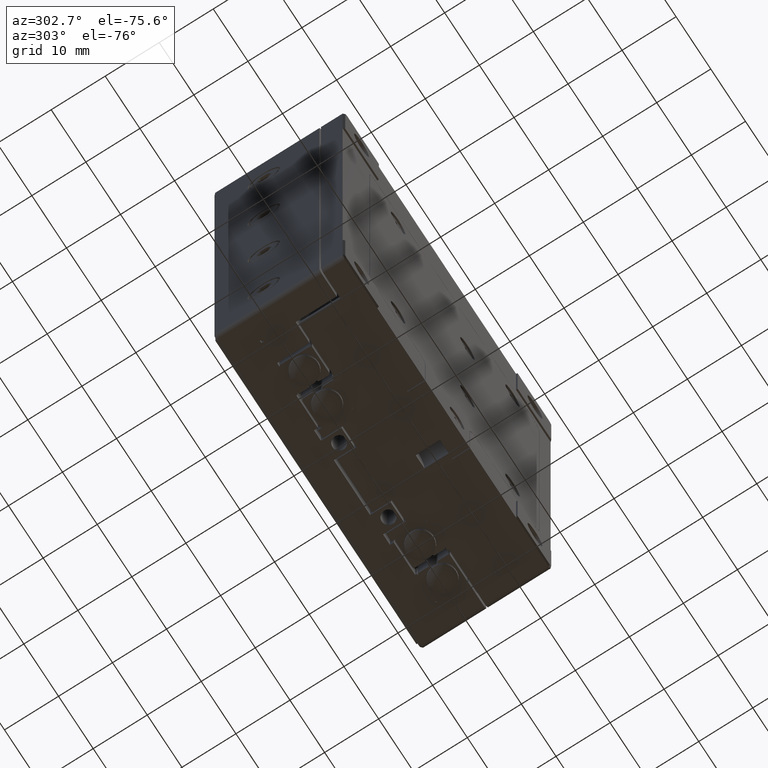
[diagram: clean part render]
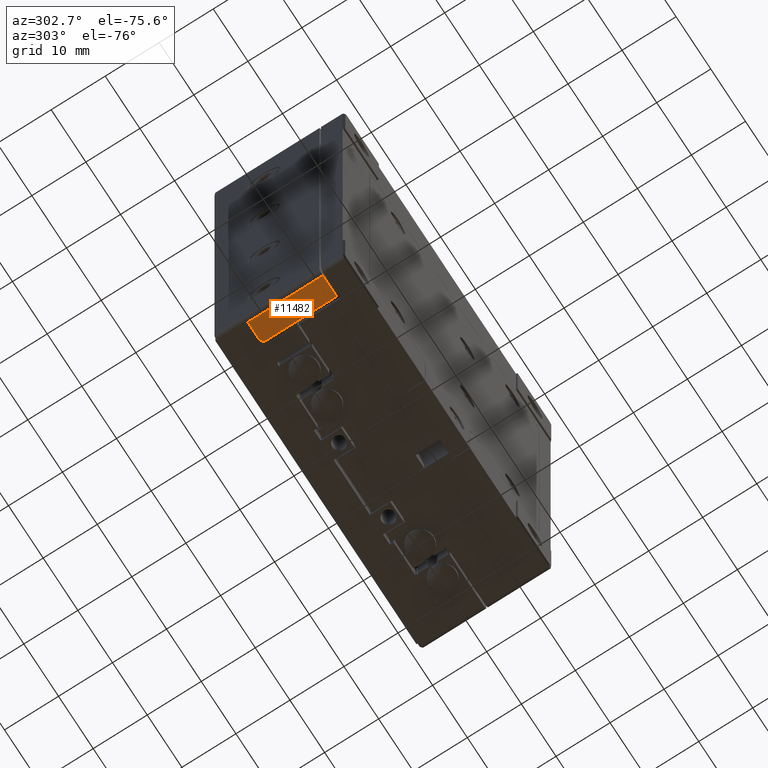
[diagram: same view with one face highlighted and labeled with its STEP entity id]
A machine part, auxiliary view. The second image highlights one B-rep face of the part: STEP entity #11482.
In plain terms, the highlighted planar face has unit normal (-0, 0, -1).
Its self-contained STEP definition (entity closure, byte-faithful):
#1233 = LINE ( 'NONE', #3054, #14756 ) ;
#2387 = CARTESIAN_POINT ( 'NONE',  ( -33.75000000000000000, -30.00000000000000000, -6.975000000000000533 ) ) ;
#2423 = LINE ( 'NONE', #6927, #10779 ) ;
#2684 = DIRECTION ( 'NONE',  ( 0.000000000000000000, 0.7071067811865474617, -0.7071067811865474617 ) ) ;
#2864 = VERTEX_POINT ( 'NONE', #16950 ) ;
#2932 = DIRECTION ( 'NONE',  ( 0.000000000000000000, 0.000000000000000000, 1.000000000000000000 ) ) ;
#3054 = CARTESIAN_POINT ( 'NONE',  ( -33.75000000000000000, -29.00000000000000000, 6.924999999999999822 ) ) ;
#3095 = CARTESIAN_POINT ( 'NONE',  ( -33.75000000000000000, -30.00000000000000000, 6.924999999999999822 ) ) ;
#3401 = AXIS2_PLACEMENT_3D ( 'NONE', #2387, #11006, #2932 ) ;
#4499 = PLANE ( 'NONE',  #3401 ) ;
#4662 = ORIENTED_EDGE ( 'NONE', *, *, #16489, .F. ) ;
#5001 = ORIENTED_EDGE ( 'NONE', *, *, #20104, .T. ) ;
#5396 = DIRECTION ( 'NONE',  ( 0.000000000000000000, 1.000000000000000000, 0.000000000000000000 ) ) ;
#6802 = ORIENTED_EDGE ( 'NONE', *, *, #12390, .T. ) ;
#6927 = CARTESIAN_POINT ( 'NONE',  ( -33.75000000000000000, -25.00000000000000000, -6.975000000000000533 ) ) ;
#7531 = VERTEX_POINT ( 'NONE', #12056 ) ;
#8200 = ORIENTED_EDGE ( 'NONE', *, *, #12931, .T. ) ;
#8417 = VECTOR ( 'NONE', #27044, 1000.000000000000000 ) ;
#10108 = VECTOR ( 'NONE', #5396, 1000.000000000000000 ) ;
#10779 = VECTOR ( 'NONE', #22004, 1000.000000000000000 ) ;
#11006 = DIRECTION ( 'NONE',  ( -1.000000000000000000, 0.000000000000000000, 0.000000000000000000 ) ) ;
#11482 = ADVANCED_FACE ( 'NONE', ( #25911 ), #4499, .T. ) ;
#12056 = CARTESIAN_POINT ( 'NONE',  ( -33.75000000000000000, -25.50000000000000000, 6.924999999999999822 ) ) ;
#12390 = EDGE_CURVE ( 'NONE', #2864, #7531, #22415, .T. ) ;
#12931 = EDGE_CURVE ( 'NONE', #21343, #2864, #1233, .T. ) ;
#12995 = EDGE_LOOP ( 'NONE', ( #4662, #8200, #6802, #5001, #15140 ) ) ;
#13738 = LINE ( 'NONE', #22323, #10108 ) ;
#14756 = VECTOR ( 'NONE', #24346, 1000.000000000000000 ) ;
#15140 = ORIENTED_EDGE ( 'NONE', *, *, #20058, .F. ) ;
#15388 = LINE ( 'NONE', #19726, #23379 ) ;
#16489 = EDGE_CURVE ( 'NONE', #21343, #26435, #13738, .T. ) ;
#16950 = CARTESIAN_POINT ( 'NONE',  ( -33.75000000000000000, -29.00000000000000000, 6.924999999999999822 ) ) ;
#18121 = VERTEX_POINT ( 'NONE', #25422 ) ;
#18730 = CARTESIAN_POINT ( 'NONE',  ( -33.75000000000000000, -29.00000000000000000, -6.975000000000000533 ) ) ;
#19726 = CARTESIAN_POINT ( 'NONE',  ( -33.75000000000000000, -20.80000000000000071, 2.225000000000000089 ) ) ;
#20058 = EDGE_CURVE ( 'NONE', #26435, #18121, #2423, .T. ) ;
#20104 = EDGE_CURVE ( 'NONE', #7531, #18121, #15388, .T. ) ;
#21343 = VERTEX_POINT ( 'NONE', #18730 ) ;
#21662 = CARTESIAN_POINT ( 'NONE',  ( -33.75000000000000000, -25.00000000000000000, -6.975000000000000533 ) ) ;
#22004 = DIRECTION ( 'NONE',  ( 0.000000000000000000, 0.000000000000000000, 1.000000000000000000 ) ) ;
#22323 = CARTESIAN_POINT ( 'NONE',  ( -33.75000000000000000, -30.00000000000000000, -6.975000000000000533 ) ) ;
#22415 = LINE ( 'NONE', #3095, #8417 ) ;
#23379 = VECTOR ( 'NONE', #2684, 1000.000000000000114 ) ;
#24346 = DIRECTION ( 'NONE',  ( 0.000000000000000000, 0.000000000000000000, 1.000000000000000000 ) ) ;
#25422 = CARTESIAN_POINT ( 'NONE',  ( -33.75000000000000000, -25.00000000000000000, 6.424999999999999822 ) ) ;
#25911 = FACE_OUTER_BOUND ( 'NONE', #12995, .T. ) ;
#26435 = VERTEX_POINT ( 'NONE', #21662 ) ;
#27044 = DIRECTION ( 'NONE',  ( 0.000000000000000000, 1.000000000000000000, 0.000000000000000000 ) ) ;